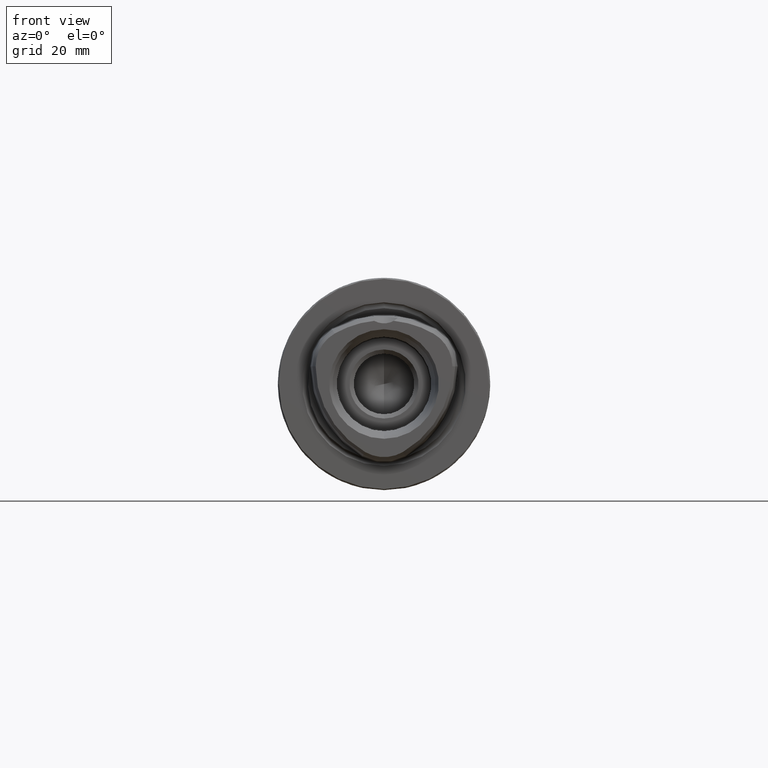
[diagram: clean part render]
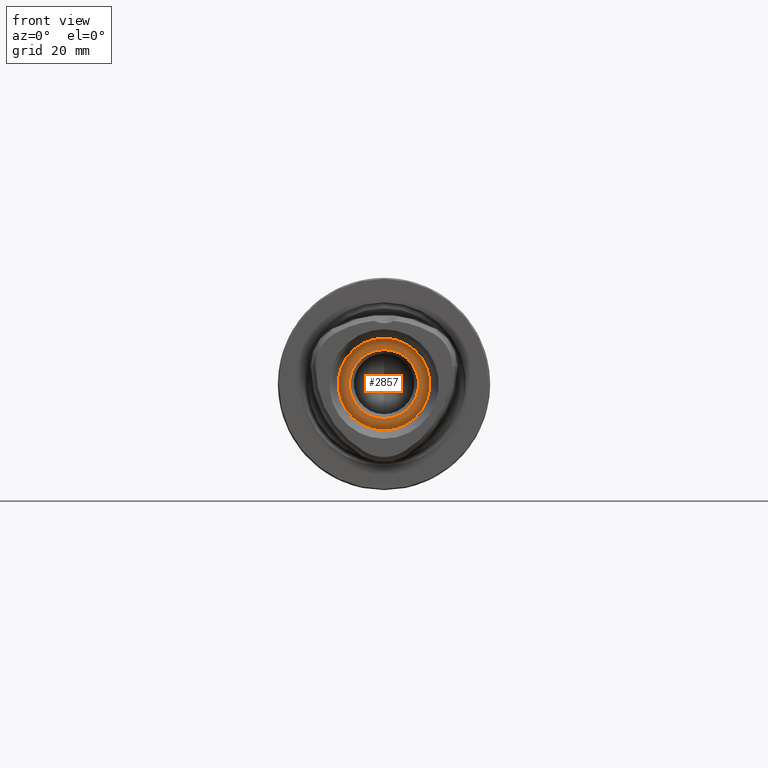
[diagram: same view with one face highlighted and labeled with its STEP entity id]
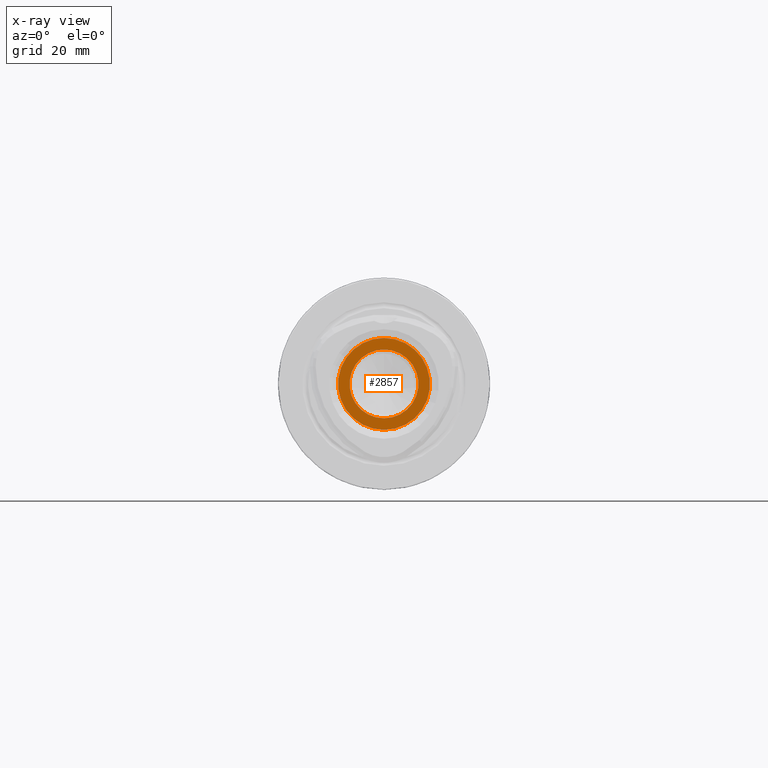
[diagram: x-ray of the same camera — body ghosted, the highlighted face saturated]
A machine part, front view. The second image highlights one B-rep face of the part: STEP entity #2857.
The next image is the same camera in x-ray: the body ghosted, the highlighted face saturated — about 0% of this face is hidden behind the body in this view.
In plain terms, the highlighted planar face has unit normal (0, -1, 0).
Its self-contained STEP definition (entity closure, byte-faithful):
#1006=CARTESIAN_POINT('',(0.E0,-1.1E1,0.E0));
#1007=DIRECTION('',(0.E0,-1.E0,0.E0));
#1008=DIRECTION('',(0.E0,0.E0,-1.E0));
#1009=AXIS2_PLACEMENT_3D('',#1006,#1007,#1008);
#1011=CARTESIAN_POINT('',(0.E0,-1.1E1,0.E0));
#1012=DIRECTION('',(0.E0,-1.E0,0.E0));
#1013=DIRECTION('',(0.E0,0.E0,1.E0));
#1014=AXIS2_PLACEMENT_3D('',#1011,#1012,#1013);
#1016=CARTESIAN_POINT('',(0.E0,-1.1E1,0.E0));
#1017=DIRECTION('',(0.E0,1.E0,0.E0));
#1018=DIRECTION('',(0.E0,0.E0,-1.E0));
#1019=AXIS2_PLACEMENT_3D('',#1016,#1017,#1018);
#1021=CARTESIAN_POINT('',(0.E0,-1.1E1,0.E0));
#1022=DIRECTION('',(0.E0,1.E0,0.E0));
#1023=DIRECTION('',(0.E0,0.E0,1.E0));
#1024=AXIS2_PLACEMENT_3D('',#1021,#1022,#1023);
#1920=CARTESIAN_POINT('',(0.E0,-1.1E1,-1.025E1));
#1921=CARTESIAN_POINT('',(0.E0,-1.1E1,1.025E1));
#1922=VERTEX_POINT('',#1920);
#1923=VERTEX_POINT('',#1921);
#2032=CARTESIAN_POINT('',(0.E0,-1.1E1,-1.361249990721E1));
#2033=CARTESIAN_POINT('',(0.E0,-1.1E1,1.361249990721E1));
#2034=VERTEX_POINT('',#2032);
#2035=VERTEX_POINT('',#2033);
#2842=CARTESIAN_POINT('',(0.E0,-1.1E1,0.E0));
#2843=DIRECTION('',(0.E0,-1.E0,0.E0));
#2844=DIRECTION('',(0.E0,0.E0,1.E0));
#2845=AXIS2_PLACEMENT_3D('',#2842,#2843,#2844);
#2846=PLANE('',#2845);
#2847=ORIENTED_EDGE('',*,*,#2834,.F.);
#2848=ORIENTED_EDGE('',*,*,#2822,.F.);
#2849=EDGE_LOOP('',(#2847,#2848));
#2850=FACE_OUTER_BOUND('',#2849,.F.);
#2852=ORIENTED_EDGE('',*,*,#2851,.F.);
#2854=ORIENTED_EDGE('',*,*,#2853,.F.);
#2855=EDGE_LOOP('',(#2852,#2854));
#2856=FACE_BOUND('',#2855,.F.);
#2857=ADVANCED_FACE('',(#2850,#2856),#2846,.T.);
#1010=CIRCLE('',#1009,1.361249990721E1);
#1015=CIRCLE('',#1014,1.361249990721E1);
#1020=CIRCLE('',#1019,1.025E1);
#1025=CIRCLE('',#1024,1.025E1);
#2822=EDGE_CURVE('',#2035,#2034,#1015,.T.);
#2834=EDGE_CURVE('',#2034,#2035,#1010,.T.);
#2851=EDGE_CURVE('',#1922,#1923,#1020,.T.);
#2853=EDGE_CURVE('',#1923,#1922,#1025,.T.);